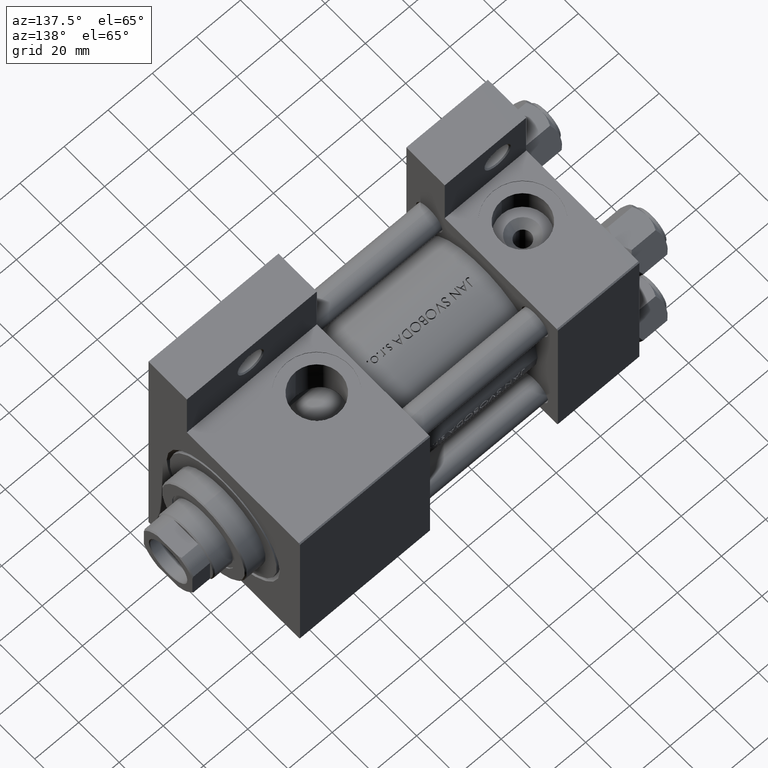
[diagram: clean part render]
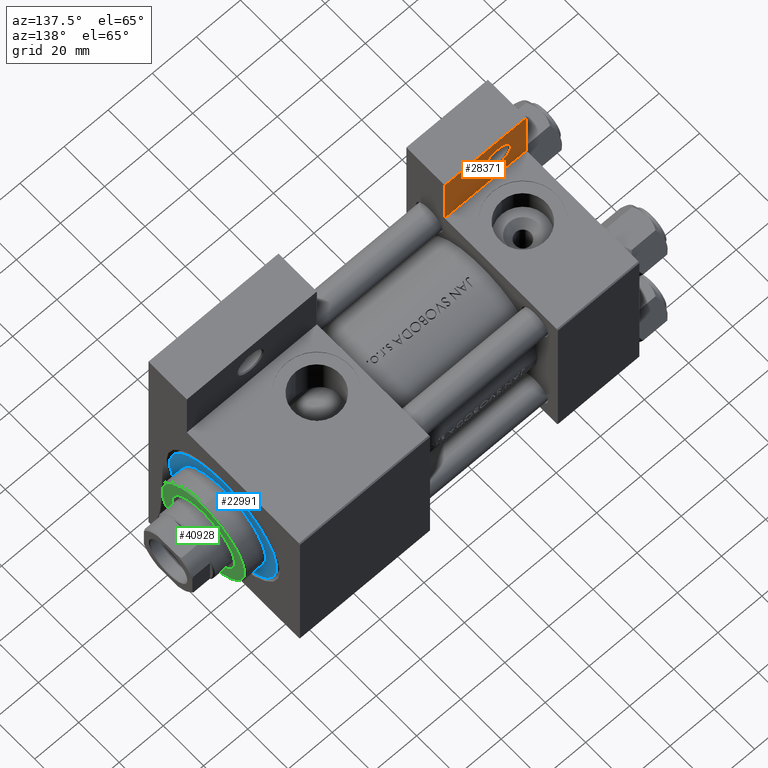
[diagram: same view with three faces highlighted in distinct colors, each labeled with its STEP entity id]
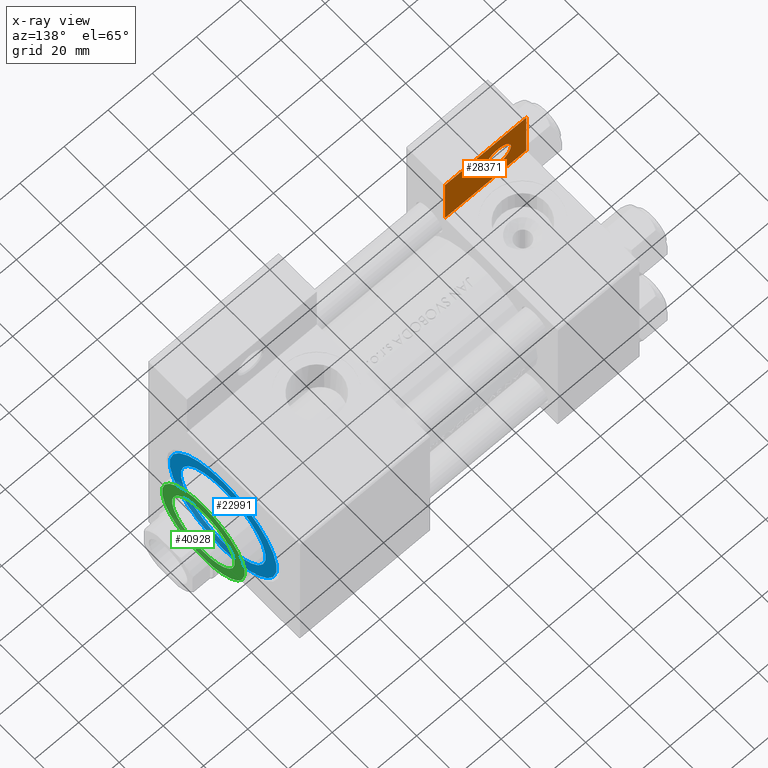
[diagram: x-ray of the same camera — body ghosted, the three highlighted faces saturated]
A machine part, auxiliary view with three faces highlighted in distinct colors.
The next image is the same camera in x-ray (body ghosted, the three faces saturated) — at least one of them is partly hidden behind the body in this view.
Their STEP definitions:

[orange] entity #28371 — the highlighted planar face has unit normal (0, -1, 0).
#596 = CARTESIAN_POINT ( 'NONE',  ( 3.977209754999744250E-16, -63.49999999999998579, -18.50000000000000355 ) ) ;
#2563 = DIRECTION ( 'NONE',  ( -1.000000000000000000, 0.000000000000000000, 0.000000000000000000 ) ) ;
#3066 = CARTESIAN_POINT ( 'NONE',  ( 37.00000000000000000, -63.50000000000000000, -18.50000000000000355 ) ) ;
#3368 = CARTESIAN_POINT ( 'NONE',  ( 37.00000000000000000, -37.50000000000000000, -18.50000000000000355 ) ) ;
#5156 = CIRCLE ( 'NONE', #24362, 5.999500000000050015 ) ;
#5488 = DIRECTION ( 'NONE',  ( 0.000000000000000000, 0.000000000000000000, -1.000000000000000000 ) ) ;
#5728 = CARTESIAN_POINT ( 'NONE',  ( 12.99999999999999822, -51.00000000000001421, -18.50000000000000000 ) ) ;
#6236 = LINE ( 'NONE', #36328, #43336 ) ;
#6523 = VERTEX_POINT ( 'NONE', #14977 ) ;
#6754 = FACE_BOUND ( 'NONE', #44927, .T. ) ;
#7473 = FACE_OUTER_BOUND ( 'NONE', #21934, .T. ) ;
#7647 = ORIENTED_EDGE ( 'NONE', *, *, #47346, .T. ) ;
#7835 = EDGE_CURVE ( 'NONE', #11524, #13040, #15806, .T. ) ;
#8623 = DIRECTION ( 'NONE',  ( -1.000000000000000000, 0.000000000000000000, 0.000000000000000000 ) ) ;
#9398 = VERTEX_POINT ( 'NONE', #42635 ) ;
#11524 = VERTEX_POINT ( 'NONE', #16965 ) ;
#11674 = ORIENTED_EDGE ( 'NONE', *, *, #44974, .T. ) ;
#13040 = VERTEX_POINT ( 'NONE', #3066 ) ;
#14464 = PLANE ( 'NONE',  #23808 ) ;
#14977 = CARTESIAN_POINT ( 'NONE',  ( -7.145701223179004046E-16, -37.50000000000000711, -18.50000000000000355 ) ) ;
#15065 = ORIENTED_EDGE ( 'NONE', *, *, #46005, .T. ) ;
#15806 = LINE ( 'NONE', #34356, #22933 ) ;
#16562 = EDGE_CURVE ( 'NONE', #32499, #9398, #5156, .T. ) ;
#16965 = CARTESIAN_POINT ( 'NONE',  ( 3.977209754999747208E-16, -63.50000000000000000, -18.50000000000000355 ) ) ;
#21669 = DIRECTION ( 'NONE',  ( 0.000000000000000000, 0.000000000000000000, -1.000000000000000000 ) ) ;
#21934 = EDGE_LOOP ( 'NONE', ( #11674, #29318, #7647, #31245 ) ) ;
#22933 = VECTOR ( 'NONE', #23023, 1000.000000000000000 ) ;
#23023 = DIRECTION ( 'NONE',  ( 1.000000000000000000, 0.000000000000000000, 0.000000000000000000 ) ) ;
#23808 = AXIS2_PLACEMENT_3D ( 'NONE', #25050, #21669, #33000 ) ;
#24063 = ORIENTED_EDGE ( 'NONE', *, *, #16562, .T. ) ;
#24362 = AXIS2_PLACEMENT_3D ( 'NONE', #42289, #45875, #2563 ) ;
#25050 = CARTESIAN_POINT ( 'NONE',  ( 0.000000000000000000, 0.000000000000000000, -18.50000000000000000 ) ) ;
#25674 = CIRCLE ( 'NONE', #45663, 5.999500000000050015 ) ;
#25876 = LINE ( 'NONE', #596, #31881 ) ;
#28371 = ADVANCED_FACE ( 'NONE', ( #6754, #7473 ), #14464, .F. ) ;
#29318 = ORIENTED_EDGE ( 'NONE', *, *, #38703, .T. ) ;
#31245 = ORIENTED_EDGE ( 'NONE', *, *, #7835, .T. ) ;
#31536 = LINE ( 'NONE', #31999, #33377 ) ;
#31881 = VECTOR ( 'NONE', #40326, 1000.000000000000000 ) ;
#31999 = CARTESIAN_POINT ( 'NONE',  ( 37.00000000000000000, -63.49999999999998579, -18.50000000000000355 ) ) ;
#32499 = VERTEX_POINT ( 'NONE', #41370 ) ;
#32707 = DIRECTION ( 'NONE',  ( -1.000000000000000000, 0.000000000000000000, 0.000000000000000000 ) ) ;
#33000 = DIRECTION ( 'NONE',  ( -1.000000000000000000, 0.000000000000000000, -0.000000000000000000 ) ) ;
#33377 = VECTOR ( 'NONE', #46654, 1000.000000000000000 ) ;
#34356 = CARTESIAN_POINT ( 'NONE',  ( 3.977209754999747208E-16, -63.50000000000000000, -18.50000000000000355 ) ) ;
#36328 = CARTESIAN_POINT ( 'NONE',  ( -7.145701223179000102E-16, -37.50000000000001421, -18.49999999999999645 ) ) ;
#38703 = EDGE_CURVE ( 'NONE', #42433, #6523, #6236, .T. ) ;
#40326 = DIRECTION ( 'NONE',  ( 4.278042683914906889E-17, -1.000000000000000000, 0.000000000000000000 ) ) ;
#41370 = CARTESIAN_POINT ( 'NONE',  ( 7.000499999999947320, -51.00000000000001421, -18.50000000000000000 ) ) ;
#42289 = CARTESIAN_POINT ( 'NONE',  ( 12.99999999999999822, -51.00000000000001421, -18.50000000000000000 ) ) ;
#42433 = VERTEX_POINT ( 'NONE', #3368 ) ;
#42635 = CARTESIAN_POINT ( 'NONE',  ( 18.99950000000004735, -51.00000000000001421, -18.50000000000000000 ) ) ;
#43336 = VECTOR ( 'NONE', #32707, 1000.000000000000000 ) ;
#44927 = EDGE_LOOP ( 'NONE', ( #15065, #24063 ) ) ;
#44974 = EDGE_CURVE ( 'NONE', #13040, #42433, #31536, .T. ) ;
#45663 = AXIS2_PLACEMENT_3D ( 'NONE', #5728, #5488, #8623 ) ;
#45875 = DIRECTION ( 'NONE',  ( 0.000000000000000000, 0.000000000000000000, -1.000000000000000000 ) ) ;
#46005 = EDGE_CURVE ( 'NONE', #9398, #32499, #25674, .T. ) ;
#46654 = DIRECTION ( 'NONE',  ( -0.000000000000000000, 1.000000000000000000, 0.000000000000000000 ) ) ;
#47346 = EDGE_CURVE ( 'NONE', #6523, #11524, #25876, .T. ) ;

[blue] entity #22991 — the highlighted planar face has unit normal (1, 0, 0).
#2729 = DIRECTION ( 'NONE',  ( 0.000000000000000000, 0.000000000000000000, 1.000000000000000000 ) ) ;
#3326 = ORIENTED_EDGE ( 'NONE', *, *, #36043, .F. ) ;
#4771 = CARTESIAN_POINT ( 'NONE',  ( 0.000000000000000000, 0.000000000000000000, 28.69999999999999929 ) ) ;
#5225 = EDGE_LOOP ( 'NONE', ( #3326, #36804 ) ) ;
#6769 = CARTESIAN_POINT ( 'NONE',  ( 0.000000000000000000, 0.000000000000000000, 28.69999999999999929 ) ) ;
#7393 = CARTESIAN_POINT ( 'NONE',  ( -21.00000000000000000, 0.000000000000000000, 28.69999999999999929 ) ) ;
#10190 = DIRECTION ( 'NONE',  ( 1.000000000000000000, 0.000000000000000000, 0.000000000000000000 ) ) ;
#12567 = ORIENTED_EDGE ( 'NONE', *, *, #44274, .T. ) ;
#13306 = AXIS2_PLACEMENT_3D ( 'NONE', #21745, #17666, #32836 ) ;
#14875 = CIRCLE ( 'NONE', #21756, 21.00000000000000000 ) ;
#16592 = CARTESIAN_POINT ( 'NONE',  ( 21.00000000000000000, 2.571758278209441661E-15, 28.69999999999999929 ) ) ;
#17367 = FACE_BOUND ( 'NONE', #5225, .T. ) ;
#17604 = DIRECTION ( 'NONE',  ( 0.000000000000000000, 0.000000000000000000, 1.000000000000000000 ) ) ;
#17666 = DIRECTION ( 'NONE',  ( 0.000000000000000000, 0.000000000000000000, 1.000000000000000000 ) ) ;
#18090 = EDGE_CURVE ( 'NONE', #43886, #37753, #22093, .T. ) ;
#19728 = CARTESIAN_POINT ( 'NONE',  ( -26.50000000000000355, 0.000000000000000000, 28.69999999999999929 ) ) ;
#19936 = DIRECTION ( 'NONE',  ( 0.000000000000000000, 0.000000000000000000, 1.000000000000000000 ) ) ;
#20224 = CIRCLE ( 'NONE', #13306, 21.00000000000000000 ) ;
#21443 = FACE_OUTER_BOUND ( 'NONE', #22126, .T. ) ;
#21745 = CARTESIAN_POINT ( 'NONE',  ( 0.000000000000000000, 0.000000000000000000, 28.69999999999999929 ) ) ;
#21756 = AXIS2_PLACEMENT_3D ( 'NONE', #33785, #30168, #22689 ) ;
#22093 = CIRCLE ( 'NONE', #27460, 26.50000000000000355 ) ;
#22126 = EDGE_LOOP ( 'NONE', ( #12567, #33207 ) ) ;
#22689 = DIRECTION ( 'NONE',  ( 1.000000000000000000, 0.000000000000000000, 0.000000000000000000 ) ) ;
#22991 = ADVANCED_FACE ( 'NONE', ( #17367, #21443 ), #36628, .T. ) ;
#24209 = CARTESIAN_POINT ( 'NONE',  ( 26.50000000000000355, 3.245314017740486554E-15, 28.69999999999999929 ) ) ;
#27460 = AXIS2_PLACEMENT_3D ( 'NONE', #4771, #19936, #34159 ) ;
#30168 = DIRECTION ( 'NONE',  ( 0.000000000000000000, 0.000000000000000000, 1.000000000000000000 ) ) ;
#32754 = AXIS2_PLACEMENT_3D ( 'NONE', #43146, #2729, #10190 ) ;
#32836 = DIRECTION ( 'NONE',  ( 1.000000000000000000, 0.000000000000000000, 0.000000000000000000 ) ) ;
#33207 = ORIENTED_EDGE ( 'NONE', *, *, #18090, .T. ) ;
#33515 = CIRCLE ( 'NONE', #32754, 26.50000000000000355 ) ;
#33785 = CARTESIAN_POINT ( 'NONE',  ( 0.000000000000000000, 0.000000000000000000, 28.69999999999999929 ) ) ;
#34159 = DIRECTION ( 'NONE',  ( 1.000000000000000000, 0.000000000000000000, 0.000000000000000000 ) ) ;
#36043 = EDGE_CURVE ( 'NONE', #42788, #44780, #20224, .T. ) ;
#36628 = PLANE ( 'NONE',  #45264 ) ;
#36804 = ORIENTED_EDGE ( 'NONE', *, *, #40960, .F. ) ;
#37753 = VERTEX_POINT ( 'NONE', #19728 ) ;
#39751 = DIRECTION ( 'NONE',  ( 1.000000000000000000, 0.000000000000000000, -0.000000000000000000 ) ) ;
#40960 = EDGE_CURVE ( 'NONE', #44780, #42788, #14875, .T. ) ;
#42788 = VERTEX_POINT ( 'NONE', #7393 ) ;
#43146 = CARTESIAN_POINT ( 'NONE',  ( 0.000000000000000000, 0.000000000000000000, 28.69999999999999929 ) ) ;
#43886 = VERTEX_POINT ( 'NONE', #24209 ) ;
#44274 = EDGE_CURVE ( 'NONE', #37753, #43886, #33515, .T. ) ;
#44780 = VERTEX_POINT ( 'NONE', #16592 ) ;
#45264 = AXIS2_PLACEMENT_3D ( 'NONE', #6769, #17604, #39751 ) ;

[green] entity #40928 — the highlighted planar face has unit normal (1, 0, 0).
#799 = FACE_OUTER_BOUND ( 'NONE', #46189, .T. ) ;
#2523 = CIRCLE ( 'NONE', #4829, 20.49999999999999645 ) ;
#3397 = CARTESIAN_POINT ( 'NONE',  ( 0.000000000000000000, 0.000000000000000000, 37.69999999999999574 ) ) ;
#4817 = VERTEX_POINT ( 'NONE', #42062 ) ;
#4829 = AXIS2_PLACEMENT_3D ( 'NONE', #3397, #10864, #25533 ) ;
#8364 = VERTEX_POINT ( 'NONE', #39027 ) ;
#8633 = EDGE_CURVE ( 'NONE', #16756, #8364, #22215, .T. ) ;
#9555 = CIRCLE ( 'NONE', #36461, 20.49999999999999645 ) ;
#10033 = CARTESIAN_POINT ( 'NONE',  ( 0.000000000000000000, 0.000000000000000000, 37.69999999999999574 ) ) ;
#10864 = DIRECTION ( 'NONE',  ( 0.000000000000000000, 0.000000000000000000, 1.000000000000000000 ) ) ;
#16193 = FACE_BOUND ( 'NONE', #23308, .T. ) ;
#16756 = VERTEX_POINT ( 'NONE', #31815 ) ;
#17955 = DIRECTION ( 'NONE',  ( 1.000000000000000000, 0.000000000000000000, 0.000000000000000000 ) ) ;
#18438 = DIRECTION ( 'NONE',  ( 0.000000000000000000, 0.000000000000000000, 1.000000000000000000 ) ) ;
#18843 = CARTESIAN_POINT ( 'NONE',  ( 0.000000000000000000, 0.000000000000000000, 37.69999999999999574 ) ) ;
#19503 = ORIENTED_EDGE ( 'NONE', *, *, #46593, .T. ) ;
#19722 = DIRECTION ( 'NONE',  ( 0.000000000000000000, 0.000000000000000000, 1.000000000000000000 ) ) ;
#22215 = CIRCLE ( 'NONE', #37582, 15.50000000000000000 ) ;
#22377 = CARTESIAN_POINT ( 'NONE',  ( 0.000000000000000000, 0.000000000000000000, 37.69999999999999574 ) ) ;
#23308 = EDGE_LOOP ( 'NONE', ( #33746, #28177 ) ) ;
#24787 = CIRCLE ( 'NONE', #46292, 15.50000000000000000 ) ;
#25533 = DIRECTION ( 'NONE',  ( 1.000000000000000000, 0.000000000000000000, 0.000000000000000000 ) ) ;
#26677 = CARTESIAN_POINT ( 'NONE',  ( 20.49999999999999645, 2.541142108230757480E-15, 37.69999999999999574 ) ) ;
#27192 = DIRECTION ( 'NONE',  ( 1.000000000000000000, 0.000000000000000000, 0.000000000000000000 ) ) ;
#27268 = DIRECTION ( 'NONE',  ( 1.000000000000000000, 0.000000000000000000, -0.000000000000000000 ) ) ;
#28177 = ORIENTED_EDGE ( 'NONE', *, *, #35710, .F. ) ;
#28685 = ORIENTED_EDGE ( 'NONE', *, *, #40372, .T. ) ;
#30313 = VERTEX_POINT ( 'NONE', #26677 ) ;
#30637 = DIRECTION ( 'NONE',  ( 0.000000000000000000, 0.000000000000000000, 1.000000000000000000 ) ) ;
#31815 = CARTESIAN_POINT ( 'NONE',  ( 15.50000000000000000, 0.000000000000000000, 37.69999999999999574 ) ) ;
#32852 = DIRECTION ( 'NONE',  ( 0.000000000000000000, 0.000000000000000000, 1.000000000000000000 ) ) ;
#33746 = ORIENTED_EDGE ( 'NONE', *, *, #8633, .F. ) ;
#34226 = DIRECTION ( 'NONE',  ( 1.000000000000000000, 0.000000000000000000, 0.000000000000000000 ) ) ;
#35710 = EDGE_CURVE ( 'NONE', #8364, #16756, #24787, .T. ) ;
#36461 = AXIS2_PLACEMENT_3D ( 'NONE', #44142, #32852, #34226 ) ;
#37582 = AXIS2_PLACEMENT_3D ( 'NONE', #22377, #19722, #27192 ) ;
#37630 = PLANE ( 'NONE',  #38689 ) ;
#38689 = AXIS2_PLACEMENT_3D ( 'NONE', #18843, #30637, #27268 ) ;
#39027 = CARTESIAN_POINT ( 'NONE',  ( -15.50000000000000000, 1.898202538678397557E-15, 37.69999999999999574 ) ) ;
#40372 = EDGE_CURVE ( 'NONE', #30313, #4817, #2523, .T. ) ;
#40928 = ADVANCED_FACE ( 'NONE', ( #16193, #799 ), #37630, .T. ) ;
#42062 = CARTESIAN_POINT ( 'NONE',  ( -20.49999999999999645, 0.000000000000000000, 37.69999999999999574 ) ) ;
#44142 = CARTESIAN_POINT ( 'NONE',  ( 0.000000000000000000, 0.000000000000000000, 37.69999999999999574 ) ) ;
#46189 = EDGE_LOOP ( 'NONE', ( #19503, #28685 ) ) ;
#46292 = AXIS2_PLACEMENT_3D ( 'NONE', #10033, #18438, #17955 ) ;
#46593 = EDGE_CURVE ( 'NONE', #4817, #30313, #9555, .T. ) ;